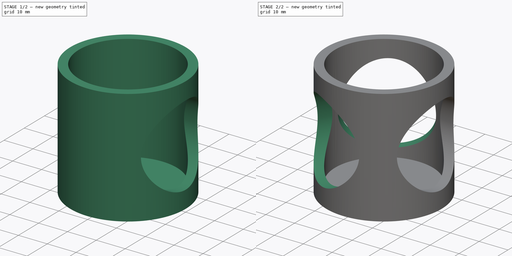
[diagram: build sequence overview — one tinted view per stage of 2, left to right]
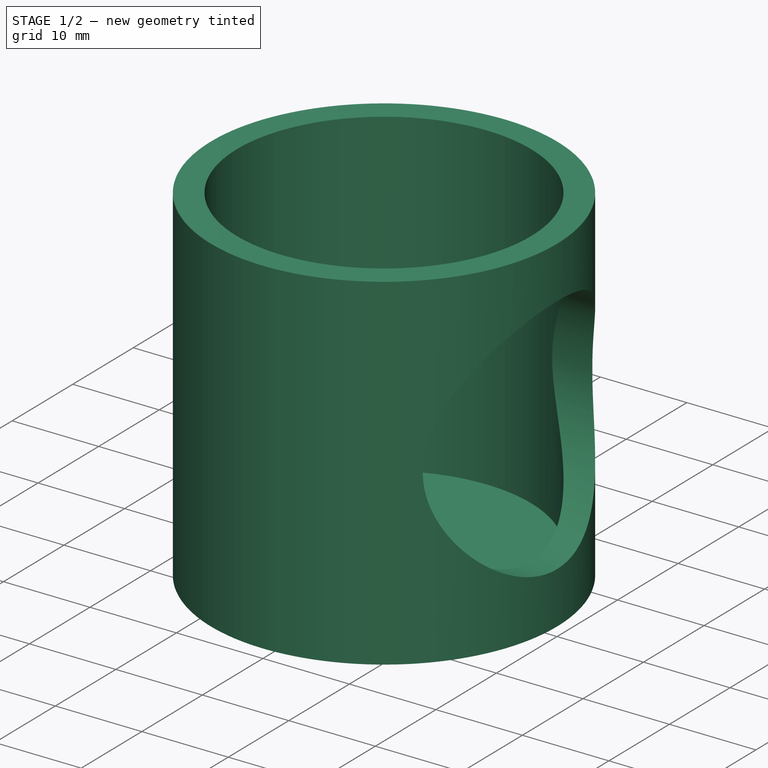
[diagram: stage 1 of 2 — iso view after this stage's code; geometry added in this stage tinted green]
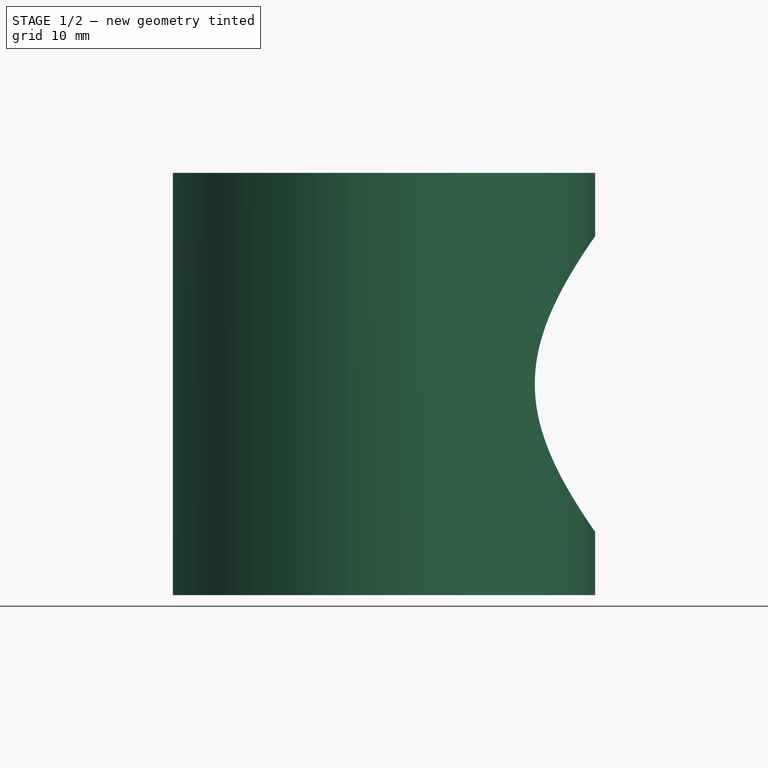
[diagram: stage 1 of 2 — front view after this stage's code; geometry added in this stage tinted green]
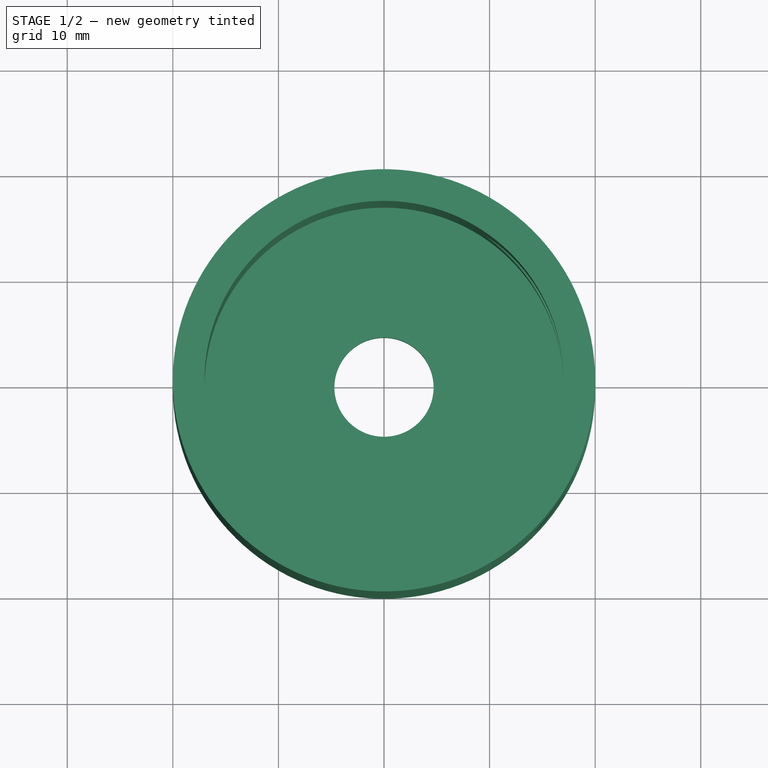
[diagram: stage 1 of 2 — top view after this stage's code; geometry added in this stage tinted green]
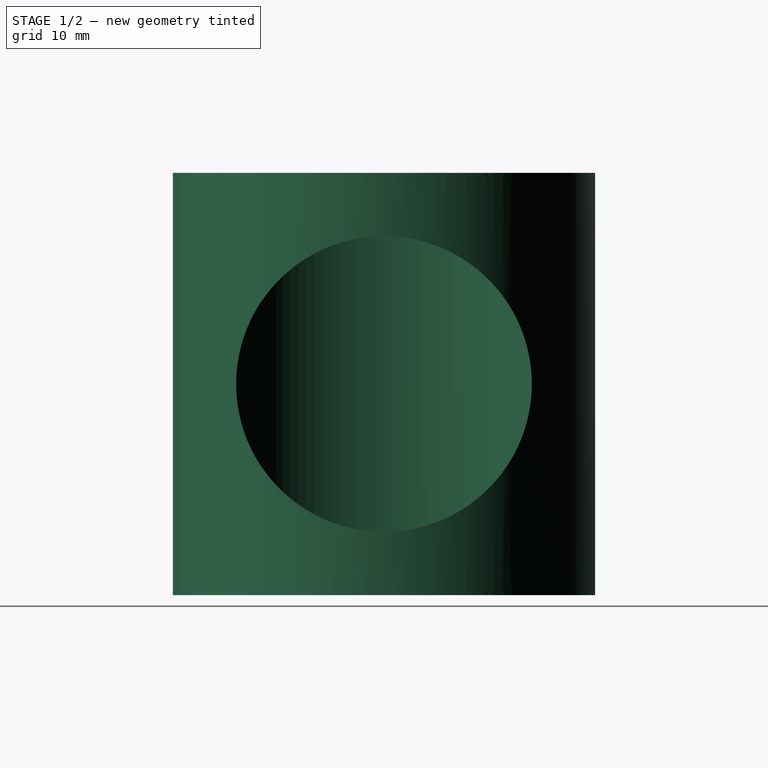
[diagram: stage 1 of 2 — right view after this stage's code; geometry added in this stage tinted green]
FCSTD DOCUMENT  (FreeCAD 0.19R24291 (Git))
Label: Присоска
License: All rights reserved
LicenseURL: http://en.wikipedia.org/wiki/All_rights_reserved
objects: Sketcher::SketchObject×1, PartDesign::Revolution×1, PartDesign::SubtractiveCylinder×1, PartDesign::PolarPattern×1, PartDesign::Body×1, Spreadsheet::Sheet×1
note: 7 computed .brp shape members not serialized (recipe doc carries the construction recipe); baked Part::Feature solids carry a one-line shape summary decoded from their .brp

FEATURE [Sketcher::SketchObject] Sketch
  FullyConstrained = true
  MapMode = 5
  Placement = pos=(0,0,0) rot=(1,0,0;1.5708rad)
  Support = -> [XZ_Plane]
  expr: Constraints[16] = Spreadsheet.height
  sketch-geometry (7):
    g0: LineSegment StartX=4.7 StartY=0 StartZ=0 EndX=20 EndY=0 EndZ=0
    g1: LineSegment StartX=17 StartY=3 StartZ=0 EndX=4.7 EndY=3 EndZ=0
    g2: LineSegment StartX=4.7 StartY=3 StartZ=0 EndX=4.7 EndY=0 EndZ=0
    g3: LineSegment StartX=20 StartY=40 StartZ=0 EndX=17 EndY=40 EndZ=0
    g4: LineSegment StartX=17 StartY=40 StartZ=0 EndX=17 EndY=3 EndZ=0
    g5: LineSegment StartX=20 StartY=0 StartZ=0 EndX=20 EndY=40 EndZ=0
    g6: LineSegment StartX=17 StartY=3 StartZ=0 EndX=20 EndY=3 EndZ=0
  constraints (21):
    c: Coincident(g1,g2)
    c: Horizontal(g0)
    c: Horizontal(g1)
    c: Vertical(g2)
    c: Coincident(g3,g4)
    c: Coincident(g5,g3)
    c: Horizontal(g3)
    c: Coincident(g4,g1)
    c: Coincident(g5,g0)
    c: Parallel(g5,g4)
    c: Distance(g3,g-2) = 20
    c: Distance(g2) = 3
    c: Coincident(g6,g1)
    c: PointOnObject(g6,g5)
    c: Perpendicular(g6,g5)
    c: Equal(g2,g6)
    c: Distance(g3,g-1) = 40
    c: Coincident(g2,g0)
    c: PointOnObject(g0,g-1)
    c: Distance(g0,g-1) = 4.7
    c: Distance(g0,g-2) = 20
FEATURE [PartDesign::Revolution] Revolution
  Angle = 360
  Axis = (0,2e-16,1)
  Base = (0,0,0)
  Placement = pos=(0,0,0) rot=(1,0,0;1.5708rad)
  Profile = -> Sketch
  ReferenceAxis = -> Sketch [V_Axis]
  Reversed = true
FEATURE [PartDesign::SubtractiveCylinder] Cylinder
  Angle = 360
  AttacherType = Attacher::AttachEngine3D
  AttachmentOffset = pos=(0,20,0) rot=(0,0,1;0rad)
  BaseFeature = -> Revolution
  Height = 100
  MapMode = 5
  Placement = pos=(-4.4e-15,4.4e-15,20) rot=(0.57735,0.57735,0.57735;2.0944rad)
  Radius = 14
  Support = -> [YZ_Plane]
  expr: .AttachmentOffset.Base.y = Spreadsheet.height / 2
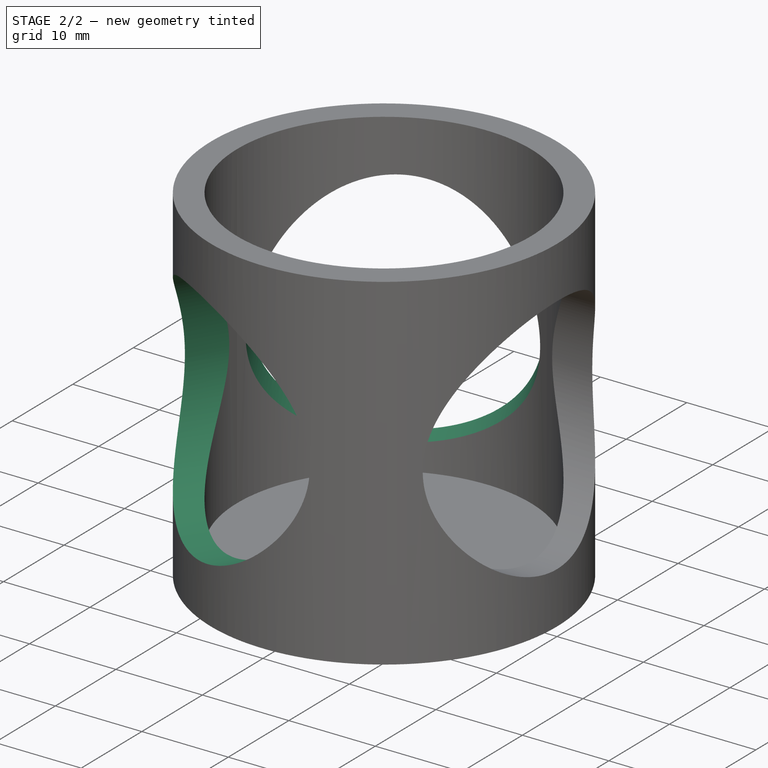
[diagram: stage 2 of 2 — iso view after this stage's code; geometry added in this stage tinted green]
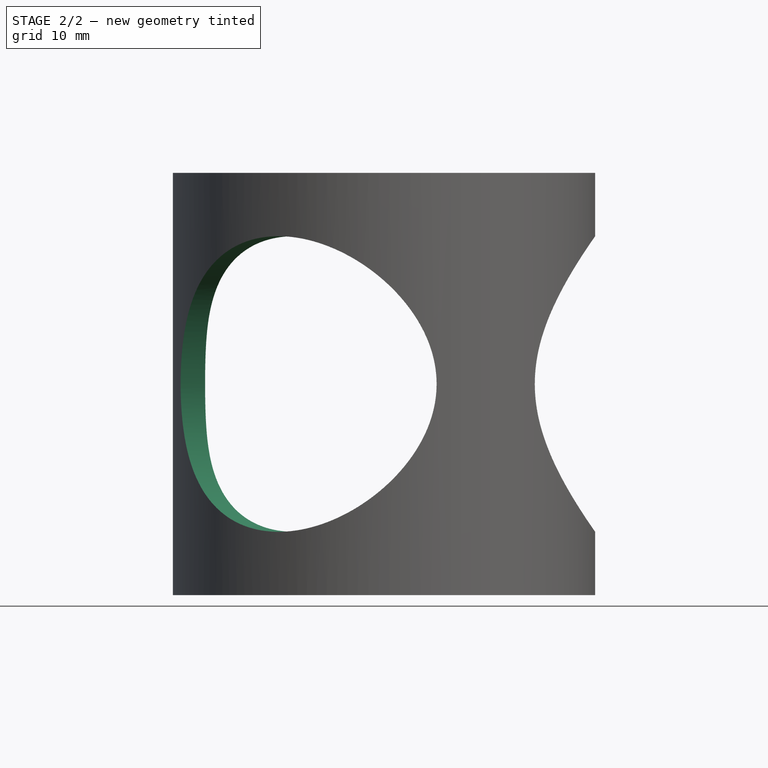
[diagram: stage 2 of 2 — front view after this stage's code; geometry added in this stage tinted green]
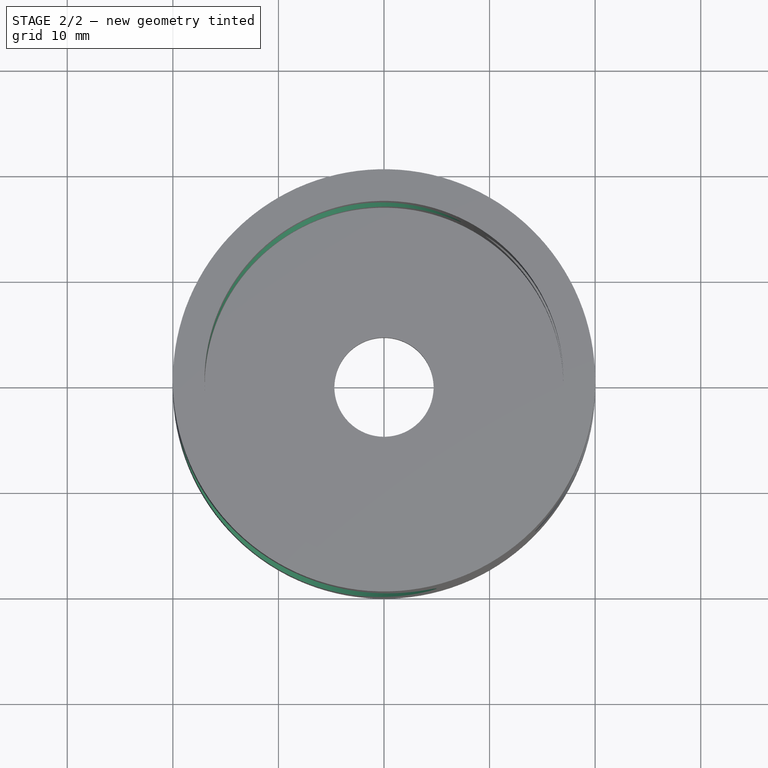
[diagram: stage 2 of 2 — top view after this stage's code; geometry added in this stage tinted green]
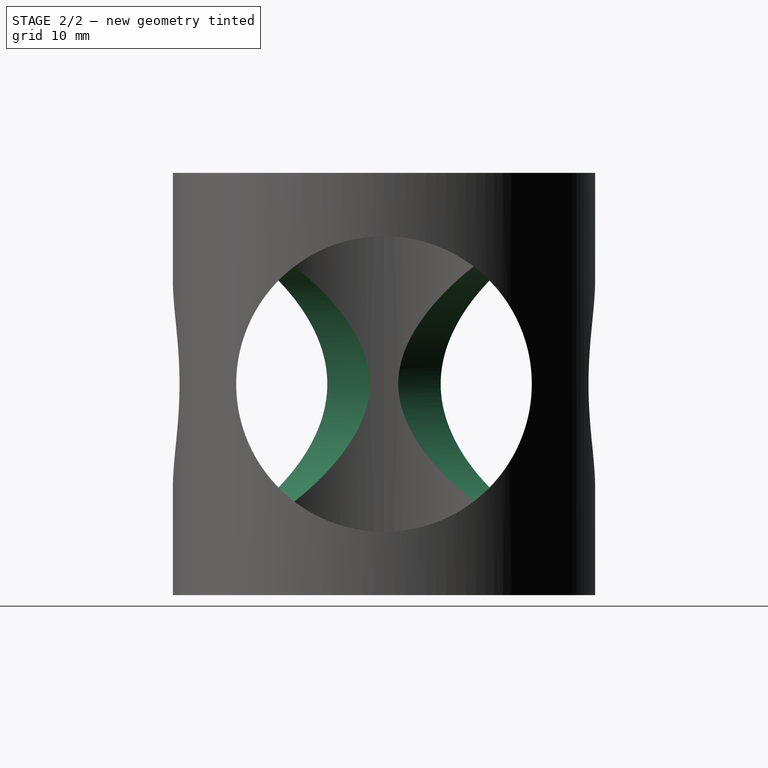
[diagram: stage 2 of 2 — right view after this stage's code; geometry added in this stage tinted green]
FEATURE [PartDesign::PolarPattern] PolarPattern
  Angle = 360
  Axis = -> Z_Axis
  BaseFeature = -> Cylinder
  Occurrences = 3
  Originals = -> [Cylinder]
  Placement = pos=(-4.4e-15,4.4e-15,20) rot=(0.57735,0.57735,0.57735;2.0944rad)
FEATURE [PartDesign::Body] Body
  Group = -> [Sketch,Revolution,Cylinder,PolarPattern]
  Origin = -> Origin
  Tip = -> PolarPattern
FEATURE [Spreadsheet::Sheet] Spreadsheet
  cells = A1(height)=40
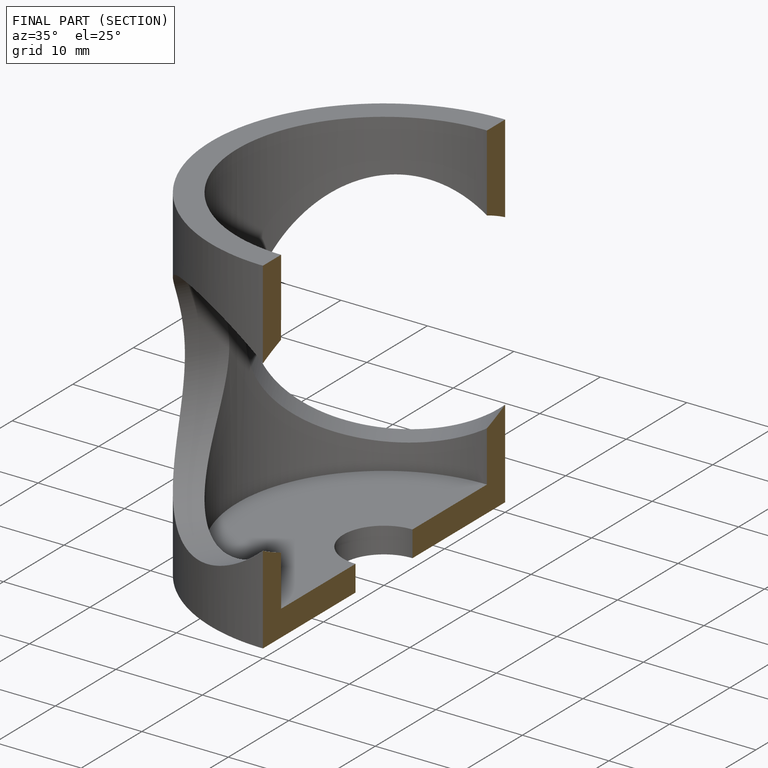
[diagram: finished part — half-section view (interior)]
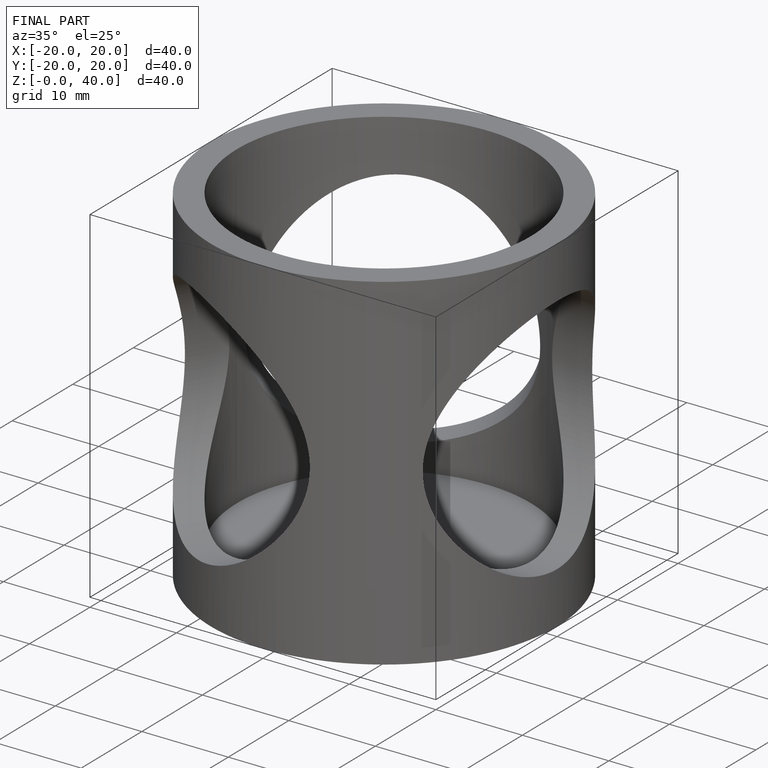
[diagram: finished part — iso view with bounding-box wireframe]
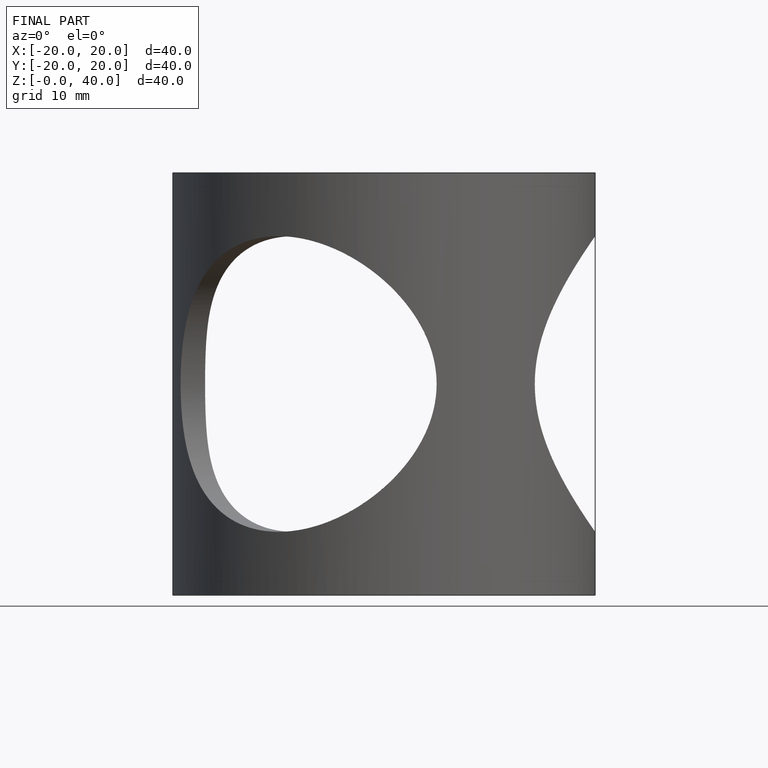
[diagram: finished part — front view with bounding-box wireframe]
